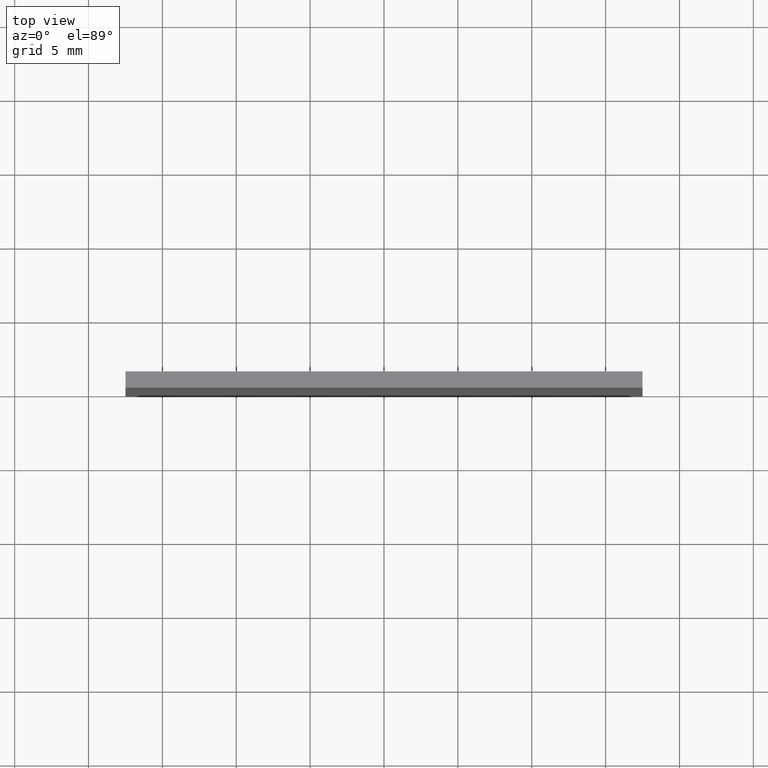
[diagram: clean part render]
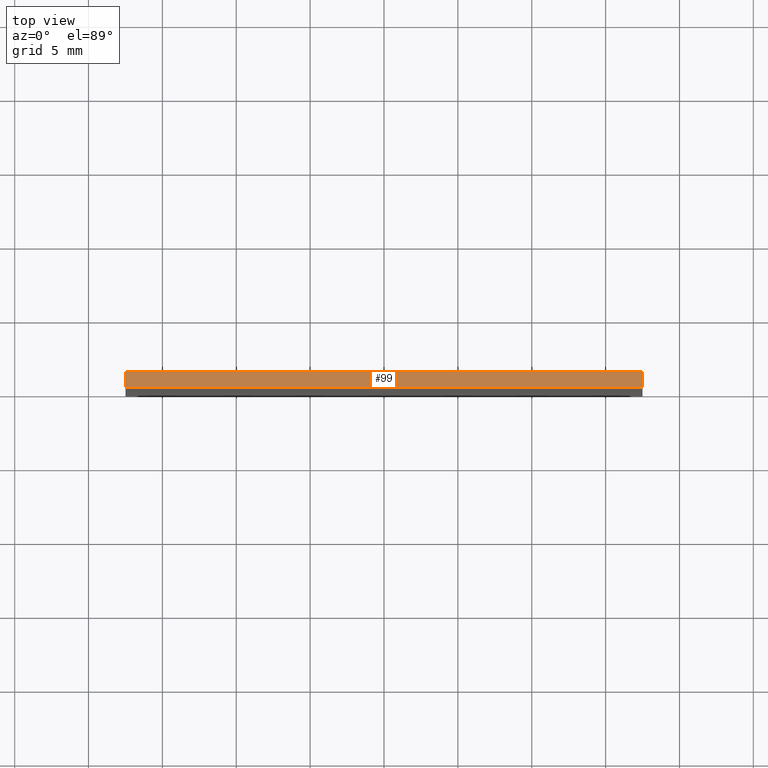
[diagram: same view with one face highlighted and labeled with its STEP entity id]
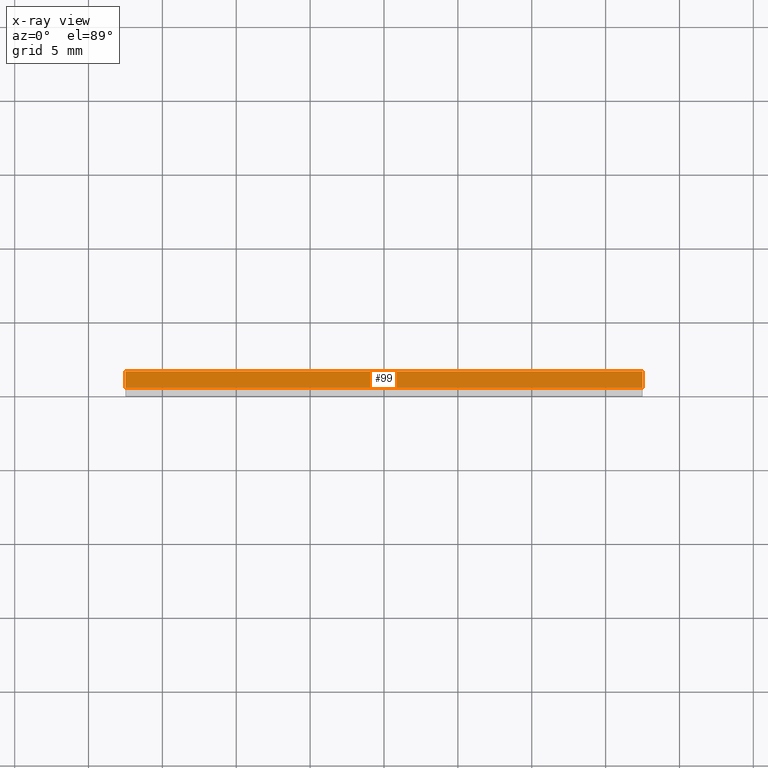
[diagram: x-ray of the same camera — body ghosted, the highlighted face saturated]
A machine part, top view. The second image highlights one B-rep face of the part: STEP entity #99.
The next image is the same camera in x-ray: the body ghosted, the highlighted face saturated — about 0% of this face is hidden behind the body in this view.
In plain terms, the highlighted planar face has unit normal (0, 0, -1).
Its self-contained STEP definition (entity closure, byte-faithful):
#2 = FACE_OUTER_BOUND ( 'NONE', #19, .T. ) ;
#4 = CARTESIAN_POINT ( 'NONE',  ( 17.50000000000000000, 1.100000000000000100, 17.50000000000000000 ) ) ;
#6 = VERTEX_POINT ( 'NONE', #17 ) ;
#7 = PLANE ( 'NONE',  #31 ) ;
#9 = EDGE_CURVE ( 'NONE', #6, #46, #202, .T. ) ;
#17 = CARTESIAN_POINT ( 'NONE',  ( 17.50000000000000000, 1.100000000000000100, 17.50000000000000000 ) ) ;
#19 = EDGE_LOOP ( 'NONE', ( #184, #124, #161, #114 ) ) ;
#20 = DIRECTION ( 'NONE',  ( -0.0000000000000000000, -1.000000000000000000, -0.0000000000000000000 ) ) ;
#31 = AXIS2_PLACEMENT_3D ( 'NONE', #42, #103, #61 ) ;
#41 = VECTOR ( 'NONE', #20, 1000.000000000000000 ) ;
#42 = CARTESIAN_POINT ( 'NONE',  ( -17.50000000000000000, 1.100000000000000100, 17.50000000000000000 ) ) ;
#46 = VERTEX_POINT ( 'NONE', #175 ) ;
#50 = DIRECTION ( 'NONE',  ( -0.0000000000000000000, -1.000000000000000000, -0.0000000000000000000 ) ) ;
#61 = DIRECTION ( 'NONE',  ( -1.000000000000000000, 0.0000000000000000000, -0.0000000000000000000 ) ) ;
#63 = EDGE_CURVE ( 'NONE', #119, #180, #69, .T. ) ;
#64 = VECTOR ( 'NONE', #189, 1000.000000000000000 ) ;
#69 = LINE ( 'NONE', #151, #41 ) ;
#81 = CARTESIAN_POINT ( 'NONE',  ( -17.50000000000000000, 0.0000000000000000000, 17.50000000000000000 ) ) ;
#93 = VECTOR ( 'NONE', #178, 1000.000000000000000 ) ;
#99 = ADVANCED_FACE ( 'NONE', ( #2 ), #7, .F. ) ;
#103 = DIRECTION ( 'NONE',  ( 0.0000000000000000000, 0.0000000000000000000, -1.000000000000000000 ) ) ;
#114 = ORIENTED_EDGE ( 'NONE', *, *, #63, .T. ) ;
#116 = CARTESIAN_POINT ( 'NONE',  ( -17.50000000000000000, 0.0000000000000000000, 17.50000000000000000 ) ) ;
#119 = VERTEX_POINT ( 'NONE', #128 ) ;
#124 = ORIENTED_EDGE ( 'NONE', *, *, #9, .F. ) ;
#128 = CARTESIAN_POINT ( 'NONE',  ( -17.50000000000000000, 1.100000000000000100, 17.50000000000000000 ) ) ;
#129 = VECTOR ( 'NONE', #50, 1000.000000000000000 ) ;
#131 = CARTESIAN_POINT ( 'NONE',  ( -17.50000000000000000, 1.100000000000000100, 17.50000000000000000 ) ) ;
#135 = EDGE_CURVE ( 'NONE', #119, #6, #168, .T. ) ;
#148 = EDGE_CURVE ( 'NONE', #180, #46, #176, .T. ) ;
#151 = CARTESIAN_POINT ( 'NONE',  ( -17.50000000000000000, 1.100000000000000100, 17.50000000000000000 ) ) ;
#161 = ORIENTED_EDGE ( 'NONE', *, *, #135, .F. ) ;
#168 = LINE ( 'NONE', #131, #64 ) ;
#175 = CARTESIAN_POINT ( 'NONE',  ( 17.50000000000000000, 0.0000000000000000000, 17.50000000000000000 ) ) ;
#176 = LINE ( 'NONE', #81, #93 ) ;
#178 = DIRECTION ( 'NONE',  ( 1.000000000000000000, 0.0000000000000000000, 0.0000000000000000000 ) ) ;
#180 = VERTEX_POINT ( 'NONE', #116 ) ;
#184 = ORIENTED_EDGE ( 'NONE', *, *, #148, .T. ) ;
#189 = DIRECTION ( 'NONE',  ( 1.000000000000000000, 0.0000000000000000000, 0.0000000000000000000 ) ) ;
#202 = LINE ( 'NONE', #4, #129 ) ;